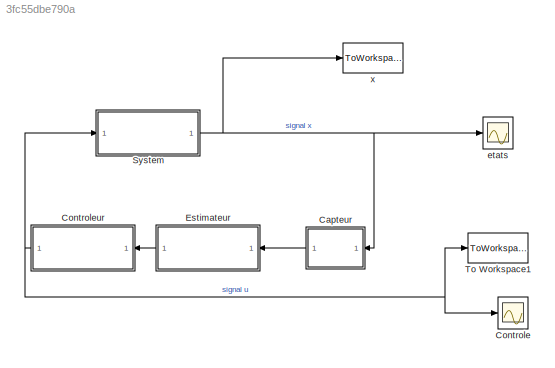
MODEL slx_3fc55dbe790a
KIND model
CONFIG AbsTol = auto
CONFIG EnableMultiTasking = off
CONFIG FixedStep = auto
CONFIG MaxStep = auto
CONFIG MinStep = auto
CONFIG RelTol = 1e-3
CONFIG SampleTimeConstraint = Unconstrained
CONFIG Solver = VariableStepAuto
CONFIG SolverName = VariableStepAuto
CONFIG StartTime = 0.0
CONFIG StopTime = 10.0
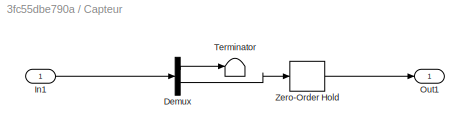
BLOCK [SubSystem] Capteur
  Ports = [1, 1]
  RequestExecContextInheritance = off
BLOCK [Demux] Capteur/Demux
  DisplayOption = bar
  Outputs = 2
  Ports = [1, 2]
BLOCK [Inport] Capteur/In1
  IconDisplay = Port number
BLOCK [Outport] Capteur/Out1
  IconDisplay = Port number
BLOCK [Terminator] Capteur/Terminator
BLOCK [ZeroOrderHold] Capteur/Zero-Order Hold
  SampleTime = -1
BLOCK [Scope] Controle
  Floating = off
  NumInputPorts = 1
  Ports = [1]
  ScopeSpecificationString = Simulink.scopes.TimeScopeBlockCfg('CurrentConfiguration', extmgr.ConfigurationSet(extmgr.Configuration('Core','General UI',true),extmgr.Configuration('Core','Source UI',true),extmgr.Configuration('Sources','WiredSimulink',true,'DataLoggingVariableName','ScopeData1'),extmgr.Configuration('Visuals','Time Domain',true,'SerializedDisplays',{struct('MinYLimReal','-95.64325','MaxYLimReal','78.25259','YL...<+1416ch>
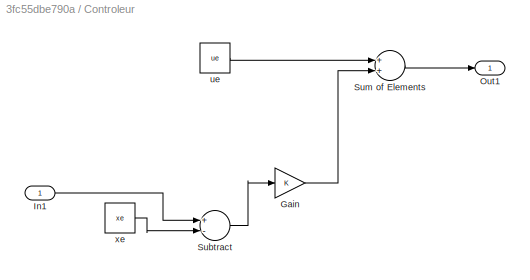
BLOCK [SubSystem] Controleur
  Ports = [1, 1]
  RequestExecContextInheritance = off
BLOCK [Gain] Controleur/Gain
  Gain = K
  Multiplication = Matrix(K*u)
  OutDataTypeStr = Inherit: Inherit via internal rule
  ParamDataTypeStr = Inherit: Inherit via internal rule
  SaturateOnIntegerOverflow = off
BLOCK [Inport] Controleur/In1
  IconDisplay = Port number
BLOCK [Outport] Controleur/Out1
  IconDisplay = Port number
BLOCK [Sum] Controleur/Subtract
  InputSameDT = off
  Inputs = +-
  OutDataTypeStr = Inherit: Inherit via internal rule
  Ports = [2, 1]
  SaturateOnIntegerOverflow = off
BLOCK [Sum] Controleur/Sum of Elements
  InputSameDT = off
  OutDataTypeStr = Inherit: Inherit via internal rule
  Ports = [2, 1]
  SaturateOnIntegerOverflow = off
BLOCK [Constant] Controleur/ue
  Value = ue
BLOCK [Constant] Controleur/xe
  Value = xe
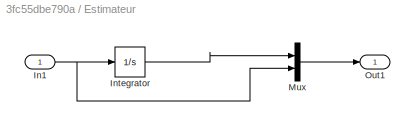
BLOCK [SubSystem] Estimateur
  Ports = [1, 1]
  RequestExecContextInheritance = off
BLOCK [Inport] Estimateur/In1
  IconDisplay = Port number
BLOCK [Integrator] Estimateur/Integrator
  InitialCondition = -1
  Ports = [1, 1]
BLOCK [Mux] Estimateur/Mux
  DisplayOption = bar
  Inputs = 2
  Ports = [2, 1]
BLOCK [Outport] Estimateur/Out1
  IconDisplay = Port number
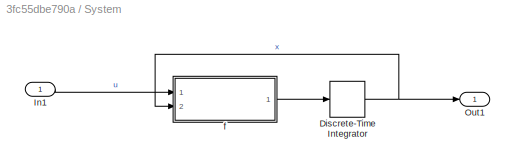
BLOCK [SubSystem] System
  Ports = [1, 1]
  RequestExecContextInheritance = off
BLOCK [DiscreteIntegrator] System/Discrete-Time Integrator
  ICPrevOutput = DiscIntNeverNeededParam
  ICPrevScaledInput = DiscIntNeverNeededParam
  InitialCondition = 1
  InitialConditionSetting = Auto
  Ports = [1, 1]
  SampleTime = -1
BLOCK [Inport] System/In1
  IconDisplay = Port number
BLOCK [Outport] System/Out1
  IconDisplay = Port number
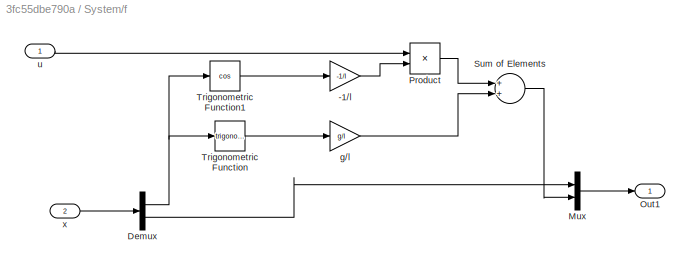
BLOCK [SubSystem] System/f
  Ports = [2, 1]
  RequestExecContextInheritance = off
BLOCK [Gain] System/f/-1//l
  Gain = -1/l
  OutDataTypeStr = Inherit: Inherit via internal rule
  ParamDataTypeStr = Inherit: Inherit via internal rule
  SaturateOnIntegerOverflow = off
BLOCK [Demux] System/f/Demux
  DisplayOption = bar
  Outputs = 2
  Ports = [1, 2]
BLOCK [Mux] System/f/Mux
  DisplayOption = bar
  Inputs = 2
  Ports = [2, 1]
BLOCK [Outport] System/f/Out1
  IconDisplay = Port number
BLOCK [Product] System/f/Product
  InputSameDT = off
  OutDataTypeStr = Inherit: Inherit via internal rule
  Ports = [2, 1]
  RndMeth = Floor
  SaturateOnIntegerOverflow = off
BLOCK [Sum] System/f/Sum of Elements
  InputSameDT = off
  OutDataTypeStr = Inherit: Inherit via internal rule
  Ports = [2, 1]
  SaturateOnIntegerOverflow = off
BLOCK [Trigonometry] System/f/Trigonometric Function
  Ports = [1, 1]
BLOCK [Trigonometry] System/f/Trigonometric Function1
  Operator = cos
  Ports = [1, 1]
BLOCK [Gain] System/f/g//l
  Gain = g/l
  OutDataTypeStr = Inherit: Inherit via internal rule
  ParamDataTypeStr = Inherit: Inherit via internal rule
  SaturateOnIntegerOverflow = off
BLOCK [Inport] System/f/u
  IconDisplay = Port number
BLOCK [Inport] System/f/x
  IconDisplay = Port number
  Port = 2
BLOCK [ToWorkspace] To Workspace1
  FixptAsFi = on
  MaxDataPoints = inf
  Ports = [1]
  SampleTime = -1
  SaveFormat = Timeseries
  VariableName = U
BLOCK [Scope] etats
  Floating = off
  NumInputPorts = 1
  Ports = [1]
  ScopeSpecificationString = Simulink.scopes.TimeScopeBlockCfg('CurrentConfiguration', extmgr.ConfigurationSet(extmgr.Configuration('Core','General UI',true),extmgr.Configuration('Core','Source UI',true),extmgr.Configuration('Sources','WiredSimulink',true),extmgr.Configuration('Visuals','Time Domain',true,'SerializedDisplays',{struct('MinYLimReal','-8.58857','MaxYLimReal','8.84818','YLabelReal','','MinYLimMag','0.00000','MaxY...<+1368ch>
BLOCK [ToWorkspace] x
  FixptAsFi = on
  MaxDataPoints = inf
  Ports = [1]
  SampleTime = -1
  SaveFormat = Timeseries
  VariableName = X
LINE Capteur/Demux:1 -> Capteur/Terminator:1
LINE Capteur/Demux:2 -> Capteur/Zero-Order Hold:1
LINE Capteur/In1:1 -> Capteur/Demux:1
LINE Capteur/Zero-Order Hold:1 -> Capteur/Out1:1
LINE Capteur:1 -> Estimateur:1
LINE Controleur/Gain:1 -> Controleur/Sum of Elements:2
LINE Controleur/In1:1 -> Controleur/Subtract:1
LINE Controleur/Subtract:1 -> Controleur/Gain:1
LINE Controleur/Sum of Elements:1 -> Controleur/Out1:1
LINE Controleur/ue:1 -> Controleur/Sum of Elements:1
LINE Controleur/xe:1 -> Controleur/Subtract:2
NET Controleur:1 -> Controle:1, System:1, To Workspace1:1
NET Estimateur/In1:1 -> Estimateur/Integrator:1, Estimateur/Mux:2
LINE Estimateur/Integrator:1 -> Estimateur/Mux:1
LINE Estimateur/Mux:1 -> Estimateur/Out1:1
LINE Estimateur:1 -> Controleur:1
NET System/Discrete-Time Integrator:1 -> System/Out1:1, System/f:2
LINE System/In1:1 -> System/f:1
LINE System/f/-1//l:1 -> System/f/Product:2
NET System/f/Demux:1 -> System/f/Trigonometric Function1:1, System/f/Trigonometric Function:1
LINE System/f/Demux:2 -> System/f/Mux:1
LINE System/f/Mux:1 -> System/f/Out1:1
LINE System/f/Product:1 -> System/f/Sum of Elements:1
LINE System/f/Sum of Elements:1 -> System/f/Mux:2
LINE System/f/Trigonometric Function1:1 -> System/f/-1//l:1
LINE System/f/Trigonometric Function:1 -> System/f/g//l:1
LINE System/f/g//l:1 -> System/f/Sum of Elements:2
LINE System/f/u:1 -> System/f/Product:1
LINE System/f/x:1 -> System/f/Demux:1
LINE System/f:1 -> System/Discrete-Time Integrator:1
NET System:1 -> Capteur:1, etats:1, x:1
note: NET lines group one-source signal fan-out (src -> all destinations, sorted); 1:1 wires keep LINE
